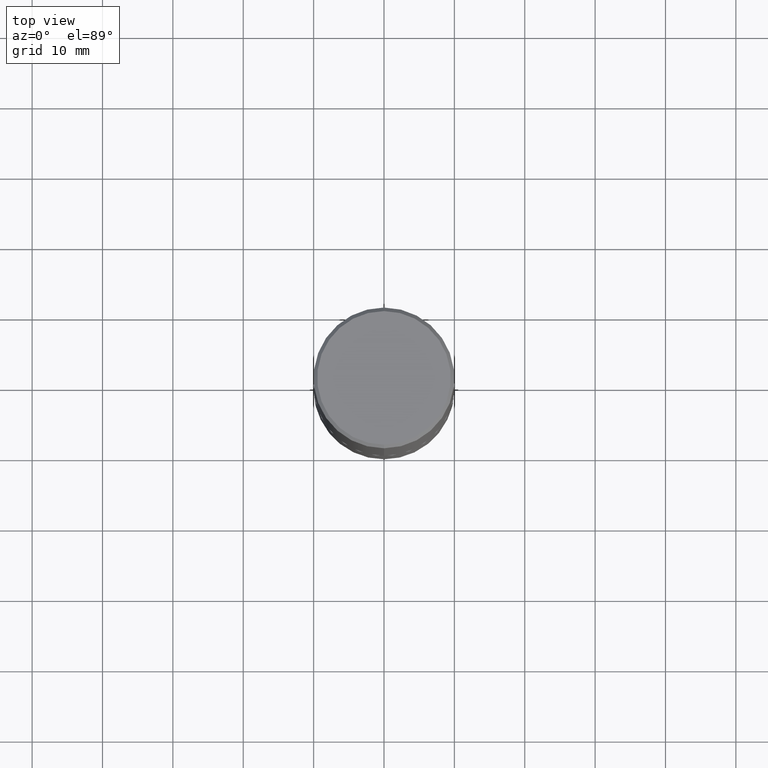
[diagram: clean part render]
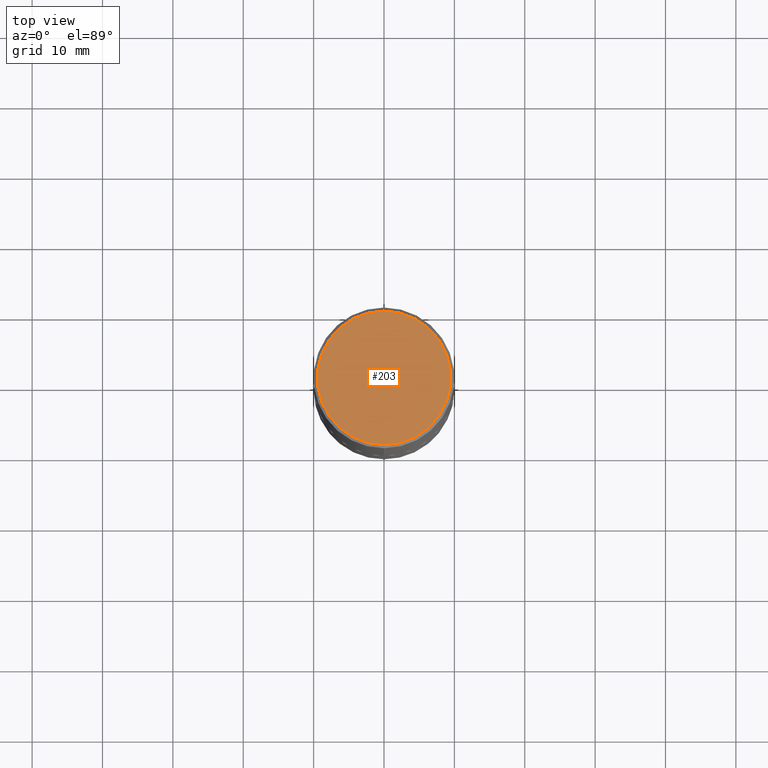
[diagram: same view with one face highlighted and labeled with its STEP entity id]
A machine part, top view. The second image highlights one B-rep face of the part: STEP entity #203.
In plain terms, the highlighted planar face has unit normal (0, -0, -1).
Its self-contained STEP definition (entity closure, byte-faithful):
#3 = DIRECTION ( 'NONE',  ( -2.446584931093789145E-29, 3.489882984448070387E-15, 1.000000000000000000 ) ) ;
#30 = EDGE_LOOP ( 'NONE', ( #288, #400 ) ) ;
#40 = DIRECTION ( 'NONE',  ( -2.446584931093789145E-29, 3.489882984448070387E-15, 1.000000000000000000 ) ) ;
#75 = AXIS2_PLACEMENT_3D ( 'NONE', #343, #3, #221 ) ;
#94 = FACE_OUTER_BOUND ( 'NONE', #30, .T. ) ;
#95 = CIRCLE ( 'NONE', #243, 0.3736999999999997546 ) ;
#111 = EDGE_CURVE ( 'NONE', #132, #402, #290, .T. ) ;
#122 = PLANE ( 'NONE',  #347 ) ;
#132 = VERTEX_POINT ( 'NONE', #274 ) ;
#187 = DIRECTION ( 'NONE',  ( 2.446584931093788865E-29, -3.489882984448070387E-15, -1.000000000000000000 ) ) ;
#203 = ADVANCED_FACE ( 'NONE', ( #94 ), #122, .F. ) ;
#221 = DIRECTION ( 'NONE',  ( -6.982962677686265922E-15, -1.000000000000000000, 3.489882984448069993E-15 ) ) ;
#243 = AXIS2_PLACEMENT_3D ( 'NONE', #255, #40, #322 ) ;
#251 = DIRECTION ( 'NONE',  ( 6.982962677686265922E-15, 1.000000000000000000, -3.489882984448070387E-15 ) ) ;
#255 = CARTESIAN_POINT ( 'NONE',  ( -4.998160026464678782E-45, 7.129527125023776096E-31, 2.042912944873800903E-16 ) ) ;
#274 = CARTESIAN_POINT ( 'NONE',  ( 2.679362779428219524E-15, 0.3736999999999997546, -1.099877976800862957E-15 ) ) ;
#283 = CARTESIAN_POINT ( 'NONE',  ( -2.632373081744935132E-15, -0.3736999999999997546, 1.508460565775622989E-15 ) ) ;
#288 = ORIENTED_EDGE ( 'NONE', *, *, #111, .T. ) ;
#290 = CIRCLE ( 'NONE', #75, 0.3736999999999997546 ) ;
#322 = DIRECTION ( 'NONE',  ( -6.982962677686265922E-15, -1.000000000000000000, 3.489882984448069993E-15 ) ) ;
#343 = CARTESIAN_POINT ( 'NONE',  ( -4.998160026464678782E-45, 7.129527125023776096E-31, 2.042912944873800903E-16 ) ) ;
#347 = AXIS2_PLACEMENT_3D ( 'NONE', #348, #187, #251 ) ;
#348 = CARTESIAN_POINT ( 'NONE',  ( 2.609533152651355831E-15, 0.3736999999999997546, -1.202023624044553064E-15 ) ) ;
#358 = EDGE_CURVE ( 'NONE', #402, #132, #95, .T. ) ;
#400 = ORIENTED_EDGE ( 'NONE', *, *, #358, .T. ) ;
#402 = VERTEX_POINT ( 'NONE', #283 ) ;